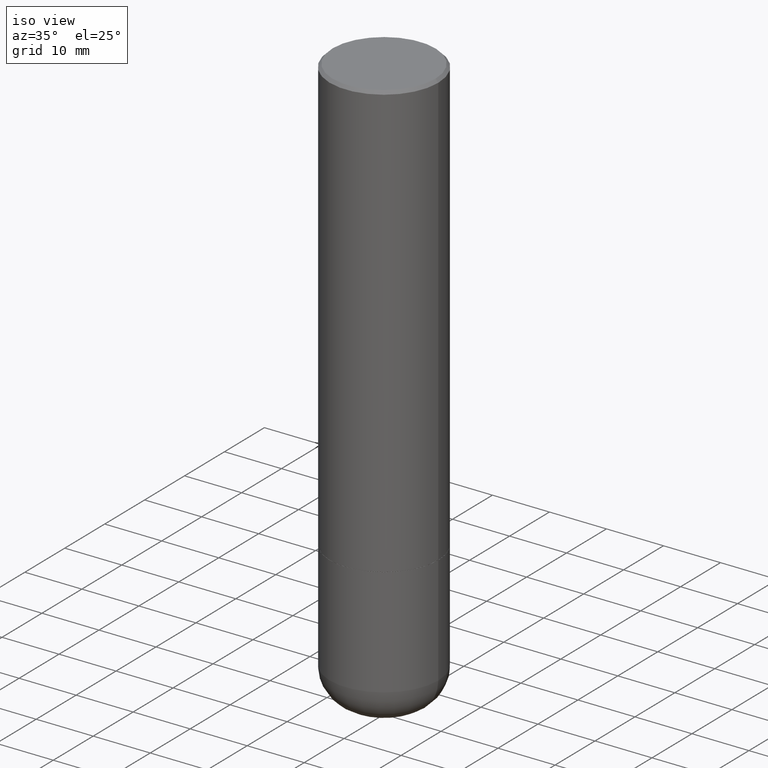
[diagram: clean part render]
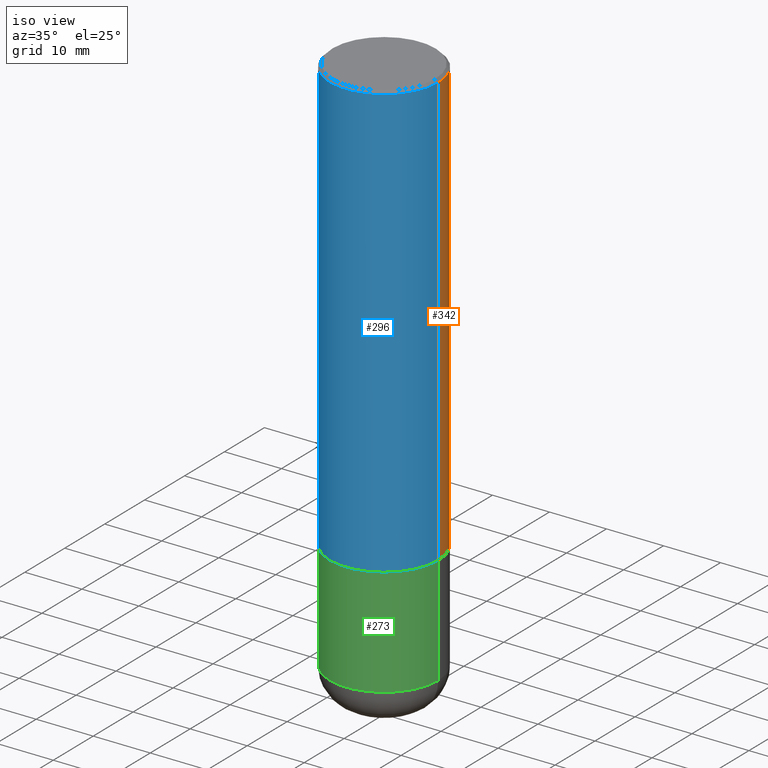
[diagram: same view with three faces highlighted in distinct colors, each labeled with its STEP entity id]
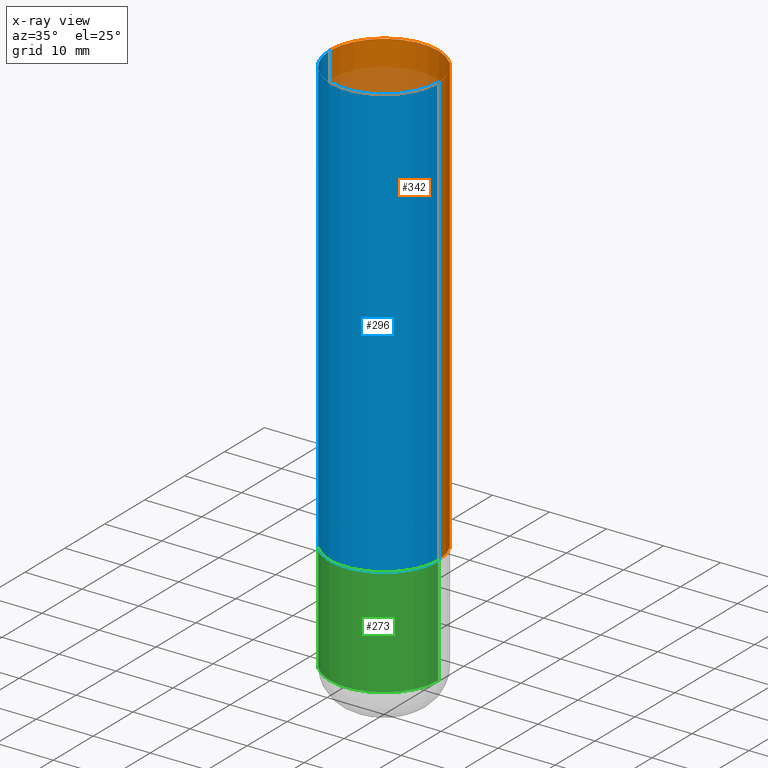
[diagram: x-ray of the same camera — body ghosted, the three highlighted faces saturated]
A machine part, iso view with three faces highlighted in distinct colors.
The next image is the same camera in x-ray (body ghosted, the three faces saturated) — at least one of them is partly hidden behind the body in this view.
Their STEP definitions:

[orange] entity #342 — the highlighted cylindrical surface (partial cylindrical patch) has radius 9.525 mm, axis along (-0, 0, 1).
#3 = FACE_OUTER_BOUND ( 'NONE', #428, .T. ) ;
#7 = EDGE_CURVE ( 'NONE', #183, #138, #66, .T. ) ;
#10 = AXIS2_PLACEMENT_3D ( 'NONE', #463, #148, #72 ) ;
#13 = CARTESIAN_POINT ( 'NONE',  ( -0.3749999999999993894, -2.605855821883354597E-15, -2.999000000000000554 ) ) ;
#23 = DIRECTION ( 'NONE',  ( 1.000000000000000000, -6.982962677686266711E-15, 0.000000000000000000 ) ) ;
#51 = CARTESIAN_POINT ( 'NONE',  ( 4.890937612370324831E-31, -6.982962677686364332E-17, -0.02000000000000020858 ) ) ;
#54 = VERTEX_POINT ( 'NONE', #442 ) ;
#66 = CIRCLE ( 'NONE', #339, 0.3749999999999991673 ) ;
#72 = DIRECTION ( 'NONE',  ( 1.000000000000000000, -6.982962677686266711E-15, 0.000000000000000000 ) ) ;
#96 = ORIENTED_EDGE ( 'NONE', *, *, #169, .F. ) ;
#106 = CARTESIAN_POINT ( 'NONE',  ( 0.3749999999999992784, -2.618611004132345283E-15, 1.828566290923472279E-29 ) ) ;
#122 = VECTOR ( 'NONE', #258, 39.37007874015748143 ) ;
#127 = ORIENTED_EDGE ( 'NONE', *, *, #262, .T. ) ;
#128 = CIRCLE ( 'NONE', #10, 0.3749999999999995004 ) ;
#138 = VERTEX_POINT ( 'NONE', #367 ) ;
#148 = DIRECTION ( 'NONE',  ( -2.445468806185136597E-29, 3.491481338843145583E-15, 1.000000000000000000 ) ) ;
#169 = EDGE_CURVE ( 'NONE', #54, #183, #446, .T. ) ;
#183 = VERTEX_POINT ( 'NONE', #410 ) ;
#188 = LINE ( 'NONE', #422, #315 ) ;
#200 = DIRECTION ( 'NONE',  ( -2.445468806185136597E-29, 3.491481338843145583E-15, 1.000000000000000000 ) ) ;
#256 = EDGE_CURVE ( 'NONE', #424, #138, #188, .T. ) ;
#258 = DIRECTION ( 'NONE',  ( -2.445468806185136877E-29, 3.491481338843145188E-15, 1.000000000000000000 ) ) ;
#262 = EDGE_CURVE ( 'NONE', #54, #424, #128, .T. ) ;
#267 = CARTESIAN_POINT ( 'NONE',  ( 0.000000000000000000, 0.000000000000000000, 0.000000000000000000 ) ) ;
#315 = VECTOR ( 'NONE', #415, 39.37007874015748143 ) ;
#317 = ORIENTED_EDGE ( 'NONE', *, *, #256, .T. ) ;
#337 = CYLINDRICAL_SURFACE ( 'NONE', #346, 0.3749999999999992784 ) ;
#339 = AXIS2_PLACEMENT_3D ( 'NONE', #51, #200, #23 ) ;
#342 = ADVANCED_FACE ( 'NONE', ( #3 ), #337, .T. ) ;
#346 = AXIS2_PLACEMENT_3D ( 'NONE', #267, #416, #457 ) ;
#356 = ORIENTED_EDGE ( 'NONE', *, *, #7, .F. ) ;
#367 = CARTESIAN_POINT ( 'NONE',  ( -0.3749999999999991673, 2.548781377355480407E-15, -0.02000000000000020858 ) ) ;
#410 = CARTESIAN_POINT ( 'NONE',  ( 0.3749999999999991673, -2.642516375941182112E-15, -0.02000000000000020858 ) ) ;
#415 = DIRECTION ( 'NONE',  ( -2.445468806185136877E-29, 3.491481338843145188E-15, 1.000000000000000000 ) ) ;
#416 = DIRECTION ( 'NONE',  ( -2.445468806185136597E-29, 3.491481338843145583E-15, 1.000000000000000000 ) ) ;
#422 = CARTESIAN_POINT ( 'NONE',  ( -0.3749999999999992784, 2.664535259100370569E-15, -1.844600658845586235E-29 ) ) ;
#424 = VERTEX_POINT ( 'NONE', #13 ) ;
#428 = EDGE_LOOP ( 'NONE', ( #127, #317, #356, #96 ) ) ;
#442 = CARTESIAN_POINT ( 'NONE',  ( 0.3749999999999995004, -1.308956353932294179E-14, -2.999000000000000554 ) ) ;
#446 = LINE ( 'NONE', #106, #122 ) ;
#457 = DIRECTION ( 'NONE',  ( 1.000000000000000000, -6.982962677686267499E-15, 4.876176775795935232E-29 ) ) ;
#463 = CARTESIAN_POINT ( 'NONE',  ( 7.333960949749226429E-29, -1.047095253519059492E-14, -2.999000000000000554 ) ) ;

[blue] entity #296 — the highlighted cylindrical surface (partial cylindrical patch) has radius 9.525 mm, axis along (-0, 0, 1).
#9 = CIRCLE ( 'NONE', #350, 0.3749999999999991673 ) ;
#13 = CARTESIAN_POINT ( 'NONE',  ( -0.3749999999999993894, -2.605855821883354597E-15, -2.999000000000000554 ) ) ;
#54 = VERTEX_POINT ( 'NONE', #442 ) ;
#74 = EDGE_CURVE ( 'NONE', #424, #54, #431, .T. ) ;
#106 = CARTESIAN_POINT ( 'NONE',  ( 0.3749999999999992784, -2.618611004132345283E-15, 1.828566290923472279E-29 ) ) ;
#107 = CARTESIAN_POINT ( 'NONE',  ( 7.333960949749226429E-29, -1.047095253519059492E-14, -2.999000000000000554 ) ) ;
#112 = DIRECTION ( 'NONE',  ( -2.445468806185136597E-29, 3.491481338843145583E-15, 1.000000000000000000 ) ) ;
#114 = DIRECTION ( 'NONE',  ( 1.000000000000000000, -6.982962677686267499E-15, 4.876176775795935232E-29 ) ) ;
#118 = CYLINDRICAL_SURFACE ( 'NONE', #330, 0.3749999999999992784 ) ;
#122 = VECTOR ( 'NONE', #258, 39.37007874015748143 ) ;
#129 = ORIENTED_EDGE ( 'NONE', *, *, #256, .F. ) ;
#138 = VERTEX_POINT ( 'NONE', #367 ) ;
#153 = DIRECTION ( 'NONE',  ( 1.000000000000000000, -6.982962677686266711E-15, 0.000000000000000000 ) ) ;
#169 = EDGE_CURVE ( 'NONE', #54, #183, #446, .T. ) ;
#183 = VERTEX_POINT ( 'NONE', #410 ) ;
#187 = FACE_OUTER_BOUND ( 'NONE', #471, .T. ) ;
#188 = LINE ( 'NONE', #422, #315 ) ;
#227 = CARTESIAN_POINT ( 'NONE',  ( 4.890937612370324831E-31, -6.982962677686364332E-17, -0.02000000000000020858 ) ) ;
#233 = EDGE_CURVE ( 'NONE', #138, #183, #9, .T. ) ;
#256 = EDGE_CURVE ( 'NONE', #424, #138, #188, .T. ) ;
#258 = DIRECTION ( 'NONE',  ( -2.445468806185136877E-29, 3.491481338843145188E-15, 1.000000000000000000 ) ) ;
#278 = ORIENTED_EDGE ( 'NONE', *, *, #74, .T. ) ;
#295 = DIRECTION ( 'NONE',  ( -2.445468806185136597E-29, 3.491481338843145583E-15, 1.000000000000000000 ) ) ;
#296 = ADVANCED_FACE ( 'NONE', ( #187 ), #118, .T. ) ;
#315 = VECTOR ( 'NONE', #415, 39.37007874015748143 ) ;
#326 = DIRECTION ( 'NONE',  ( 1.000000000000000000, -6.982962677686266711E-15, 0.000000000000000000 ) ) ;
#330 = AXIS2_PLACEMENT_3D ( 'NONE', #340, #343, #114 ) ;
#340 = CARTESIAN_POINT ( 'NONE',  ( 0.000000000000000000, 0.000000000000000000, 0.000000000000000000 ) ) ;
#343 = DIRECTION ( 'NONE',  ( -2.445468806185136597E-29, 3.491481338843145583E-15, 1.000000000000000000 ) ) ;
#350 = AXIS2_PLACEMENT_3D ( 'NONE', #227, #112, #153 ) ;
#367 = CARTESIAN_POINT ( 'NONE',  ( -0.3749999999999991673, 2.548781377355480407E-15, -0.02000000000000020858 ) ) ;
#374 = ORIENTED_EDGE ( 'NONE', *, *, #169, .T. ) ;
#404 = AXIS2_PLACEMENT_3D ( 'NONE', #107, #295, #326 ) ;
#410 = CARTESIAN_POINT ( 'NONE',  ( 0.3749999999999991673, -2.642516375941182112E-15, -0.02000000000000020858 ) ) ;
#415 = DIRECTION ( 'NONE',  ( -2.445468806185136877E-29, 3.491481338843145188E-15, 1.000000000000000000 ) ) ;
#422 = CARTESIAN_POINT ( 'NONE',  ( -0.3749999999999992784, 2.664535259100370569E-15, -1.844600658845586235E-29 ) ) ;
#424 = VERTEX_POINT ( 'NONE', #13 ) ;
#431 = CIRCLE ( 'NONE', #404, 0.3749999999999995004 ) ;
#442 = CARTESIAN_POINT ( 'NONE',  ( 0.3749999999999995004, -1.308956353932294179E-14, -2.999000000000000554 ) ) ;
#446 = LINE ( 'NONE', #106, #122 ) ;
#466 = ORIENTED_EDGE ( 'NONE', *, *, #233, .F. ) ;
#471 = EDGE_LOOP ( 'NONE', ( #129, #278, #374, #466 ) ) ;

[green] entity #273 — the highlighted cylindrical surface (partial cylindrical patch) has radius 9.525 mm, axis along (-0, 0, 1).
#4 = DIRECTION ( 'NONE',  ( -2.445468806185136877E-29, 3.491481338843145188E-15, 1.000000000000000000 ) ) ;
#29 = CARTESIAN_POINT ( 'NONE',  ( -0.3749999999999997780, 2.664535259100374119E-15, -1.844600658845588477E-29 ) ) ;
#30 = CIRCLE ( 'NONE', #298, 0.3749999999999995004 ) ;
#59 = DIRECTION ( 'NONE',  ( -2.445468806185136597E-29, 3.491481338843145583E-15, 1.000000000000000000 ) ) ;
#64 = DIRECTION ( 'NONE',  ( 1.000000000000000000, -6.982962677686266711E-15, 0.000000000000000000 ) ) ;
#65 = EDGE_CURVE ( 'NONE', #265, #366, #176, .T. ) ;
#69 = ORIENTED_EDGE ( 'NONE', *, *, #65, .F. ) ;
#79 = EDGE_CURVE ( 'NONE', #366, #399, #30, .T. ) ;
#94 = ORIENTED_EDGE ( 'NONE', *, *, #79, .F. ) ;
#101 = CIRCLE ( 'NONE', #379, 0.3750000000000000555 ) ;
#104 = DIRECTION ( 'NONE',  ( -2.445468806185136877E-29, 3.491481338843145188E-15, 1.000000000000000000 ) ) ;
#120 = VERTEX_POINT ( 'NONE', #131 ) ;
#131 = CARTESIAN_POINT ( 'NONE',  ( 0.3750000000000000555, -1.571169926102186855E-14, -3.750009519233957089 ) ) ;
#140 = VECTOR ( 'NONE', #4, 39.37007874015748143 ) ;
#176 = LINE ( 'NONE', #29, #417 ) ;
#177 = CARTESIAN_POINT ( 'NONE',  ( 7.336406418555408669E-29, -1.047444401652943478E-14, -2.999999999999999556 ) ) ;
#189 = EDGE_CURVE ( 'NONE', #265, #120, #101, .T. ) ;
#191 = CARTESIAN_POINT ( 'NONE',  ( 0.000000000000000000, 0.000000000000000000, 0.000000000000000000 ) ) ;
#223 = FACE_OUTER_BOUND ( 'NONE', #281, .T. ) ;
#236 = EDGE_CURVE ( 'NONE', #120, #399, #421, .T. ) ;
#251 = CARTESIAN_POINT ( 'NONE',  ( 9.170531302183963183E-29, -1.309308825688951696E-14, -3.750009519233957089 ) ) ;
#257 = DIRECTION ( 'NONE',  ( 1.000000000000000000, -6.982962677686266711E-15, 0.000000000000000000 ) ) ;
#265 = VERTEX_POINT ( 'NONE', #384 ) ;
#273 = ADVANCED_FACE ( 'NONE', ( #223 ), #380, .T. ) ;
#281 = EDGE_LOOP ( 'NONE', ( #69, #354, #477, #94 ) ) ;
#298 = AXIS2_PLACEMENT_3D ( 'NONE', #177, #408, #257 ) ;
#354 = ORIENTED_EDGE ( 'NONE', *, *, #189, .T. ) ;
#366 = VERTEX_POINT ( 'NONE', #388 ) ;
#377 = DIRECTION ( 'NONE',  ( 1.000000000000000000, -6.982962677686265922E-15, 4.876176775795935793E-29 ) ) ;
#379 = AXIS2_PLACEMENT_3D ( 'NONE', #251, #59, #64 ) ;
#380 = CYLINDRICAL_SURFACE ( 'NONE', #472, 0.3749999999999997780 ) ;
#382 = DIRECTION ( 'NONE',  ( -2.445468806185136597E-29, 3.491481338843145583E-15, 1.000000000000000000 ) ) ;
#384 = CARTESIAN_POINT ( 'NONE',  ( -0.3750000000000000555, -9.119230877609100958E-15, -3.750009519233957089 ) ) ;
#388 = CARTESIAN_POINT ( 'NONE',  ( -0.3749999999999995004, -9.119230877609102536E-15, -2.999999999999999556 ) ) ;
#399 = VERTEX_POINT ( 'NONE', #484 ) ;
#408 = DIRECTION ( 'NONE',  ( -2.445468806185136597E-29, 3.491481338843145583E-15, 1.000000000000000000 ) ) ;
#417 = VECTOR ( 'NONE', #104, 39.37007874015748143 ) ;
#421 = LINE ( 'NONE', #489, #140 ) ;
#472 = AXIS2_PLACEMENT_3D ( 'NONE', #191, #382, #377 ) ;
#477 = ORIENTED_EDGE ( 'NONE', *, *, #236, .T. ) ;
#484 = CARTESIAN_POINT ( 'NONE',  ( 0.3749999999999995004, -1.309305502066178164E-14, -2.999999999999999556 ) ) ;
#489 = CARTESIAN_POINT ( 'NONE',  ( 0.3749999999999997780, -2.618611004132348044E-15, 1.828566290923474801E-29 ) ) ;